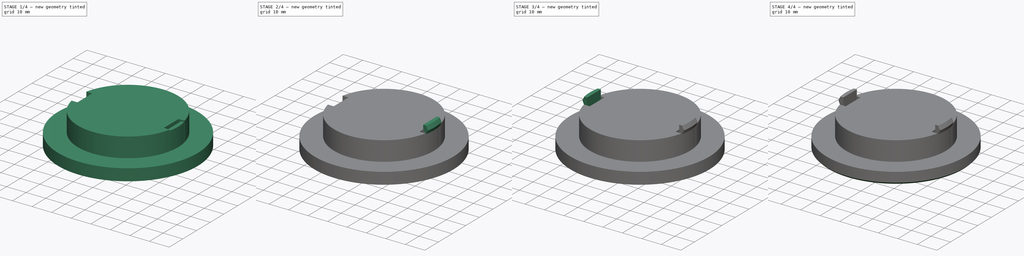
[diagram: build sequence overview — one tinted view per stage of 4, left to right]
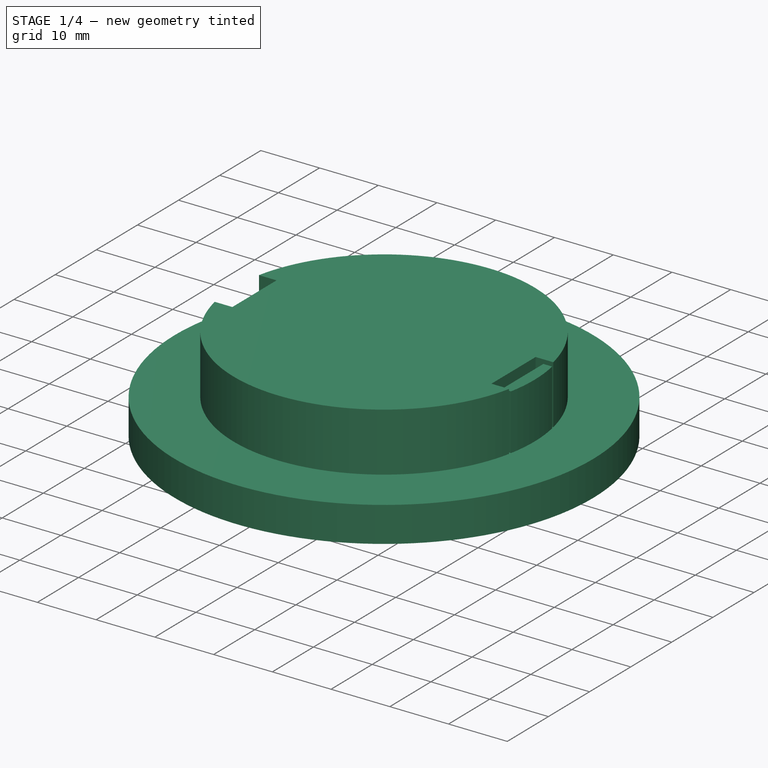
[diagram: stage 1 of 4 — iso view after this stage's code; geometry added in this stage tinted green]
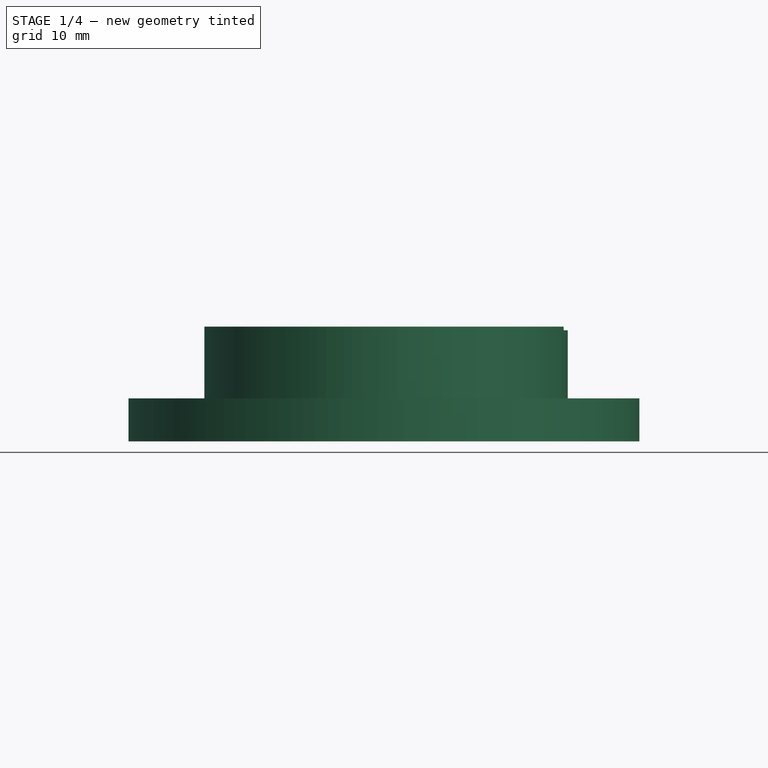
[diagram: stage 1 of 4 — front view after this stage's code; geometry added in this stage tinted green]
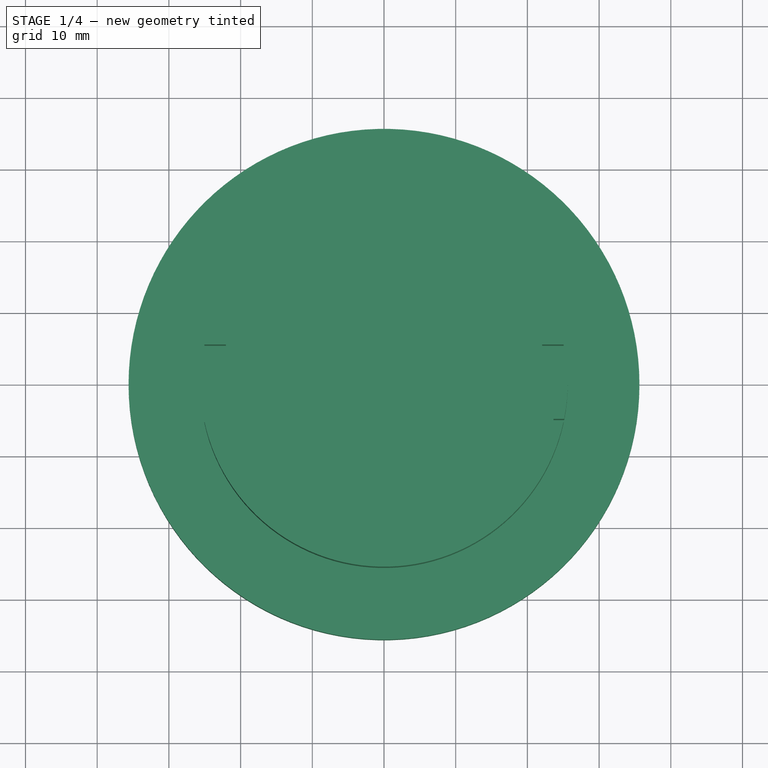
[diagram: stage 1 of 4 — top view after this stage's code; geometry added in this stage tinted green]
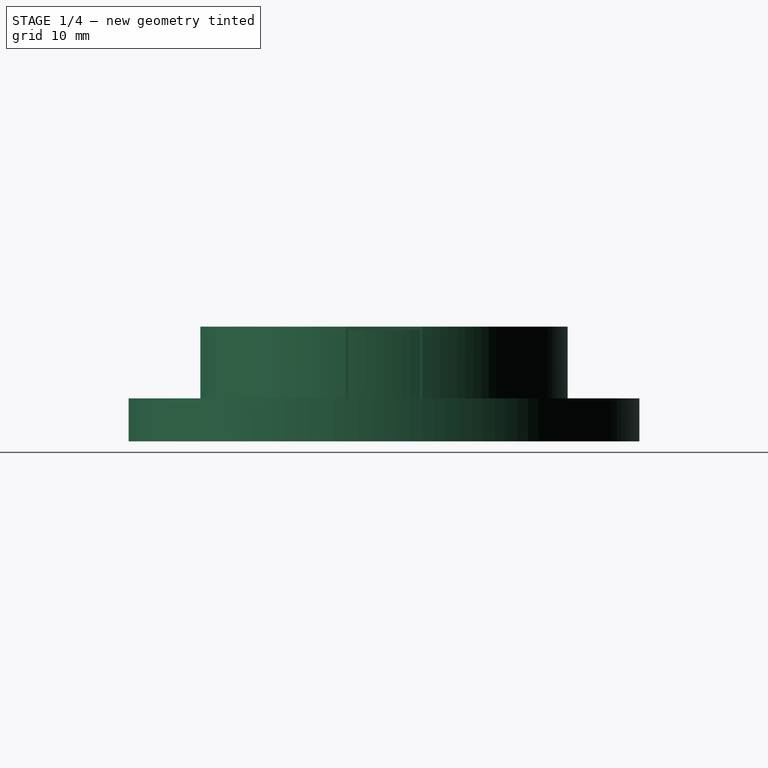
[diagram: stage 1 of 4 — right view after this stage's code; geometry added in this stage tinted green]
FCSTD DOCUMENT  (FreeCAD 0.19R23578 (Git))
Label: preheat hole cover
License: All rights reserved
LicenseURL: http://en.wikipedia.org/wiki/All_rights_reserved
objects: Sketcher::SketchObject×8, PartDesign::Pad×4, PartDesign::Mirrored×2, PartDesign::Chamfer×2, Spreadsheet::Sheet×1, PartDesign::Draft×1, PartDesign::AdditiveLoft×1, PartDesign::Fillet×1, PartDesign::SubtractiveLoft×1, PartDesign::Body×1
note: 31 computed .brp shape members not serialized (recipe doc carries the construction recipe); baked Part::Feature solids carry a one-line shape summary decoded from their .brp

FEATURE [Spreadsheet::Sheet] Spreadsheet  label="dim"
  cells = A2=diameter; B2(diameter)=51.25; A3=thickness; B3(thickness)=10; A4=flange; B4(flange)=10; A5=flange_thickness; B5(flange_thickness)=6; A6=lock_width; B6(lock_width)=10; A7=lock_undercut; B7(lock_undercut)=1.5; A8=lock_thickness; B8(lock_thickness)=1.5; A9=lock_height; B9(lock_height)=9.5; A10=lock_slack; B10(lock_slack)=0.75; A11=lock_extra; B11(lock_extra)=4; A12=lock_draft; B12(lock_draft)=25; A13=grab_width; B13(grab_width)=12.5; A14=grab_height; B14(grab_height)=20; A15=grab_depth; B15(grab_depth)=6; A16=grab_distance; B16(grab_distance)=25; A17=grab_draft; B17(grab_draft)=55; A18=grab_distance_2; B18(grab_distance_2)==grab_distance - 2 * cos(grab_draft) * grab_depth
FEATURE [Sketcher::SketchObject] Sketch
  MapMode = 5
  Support = -> [XY_Plane]
  expr: Constraints[18] = <<dim>>.lock_width + <<dim>>.lock_slack
  expr: Constraints[19] = <<dim>>.diameter
  expr: Constraints[20] = <<dim>>.lock_thickness + <<dim>>.lock_undercut
  sketch-geometry (8):
    g0: ArcOfCircle CenterX=0 CenterY=0 CenterZ=0 NormalX=0 NormalY=0 NormalZ=1 AngleXU=0 Radius=25.625 StartAngle=0.211326 EndAngle=2.93027
    g1: LineSegment StartX=25.0549 StartY=5.375 StartZ=0 EndX=22.0549 EndY=5.375 EndZ=0
    g2: LineSegment StartX=22.0549 StartY=5.375 StartZ=0 EndX=22.0549 EndY=-5.375 EndZ=0
    g3: LineSegment StartX=22.0549 StartY=-5.375 StartZ=0 EndX=25.0549 EndY=-5.375 EndZ=0
    g4: LineSegment StartX=-25.0549 StartY=5.375 StartZ=0 EndX=-22.0549 EndY=5.375 EndZ=0
    g5: LineSegment StartX=-22.0549 StartY=5.375 StartZ=0 EndX=-22.0549 EndY=-5.375 EndZ=0
    g6: LineSegment StartX=-22.0549 StartY=-5.375 StartZ=0 EndX=-25.0549 EndY=-5.375 EndZ=0
    g7: ArcOfCircle CenterX=0 CenterY=0 CenterZ=0 NormalX=0 NormalY=0 NormalZ=1 AngleXU=0 Radius=25.625 StartAngle=3.35292 EndAngle=6.07186
  constraints (23):
    c: Coincident(g0,g-1)
    c: Coincident(g1,g2)
    c: Coincident(g2,g3)
    c: Horizontal(g3)
    c: Coincident(g0,g1)
    c: Coincident(g7,g3)
    c: Horizontal(g4)
    c: Coincident(g4,g5)
    c: Vertical(g5)
    c: Coincident(g5,g6)
    c: Horizontal(g6)
    c: Coincident(g0,g4)
    c: Coincident(g7,g6)
    c: Coincident(g0,g7)
    c: Horizontal(g1)
    c: Horizontal(g1,g4)
    c: Equal(g1,g4)
    c: Symmetric(g1,g2,g-1)
    c: DistanceY(g2,g2) = 10.75
    c: Diameter(g0) = 51.25
    c: DistanceX(g1,g1) = 3
    c: Equal(g0,g7)
    c: Horizontal(g5,g2)
FEATURE [PartDesign::Pad] Pad
  Direction = (1,1,1)
  Length = 10
  Length2 = 100
  Profile = -> Sketch
  Refine = true
  Type = 0
  expr: Length = <<dim>>.thickness
FEATURE [Sketcher::SketchObject] Sketch001
  MapMode = 5
  Support = -> [XY_Plane]
  expr: Constraints[1] = <<dim>>.diameter + 2 * <<dim>>.flange
  sketch-geometry (1):
    g0: Circle CenterX=0 CenterY=0 CenterZ=0 NormalX=0 NormalY=0 NormalZ=1 AngleXU=0 Radius=35.625
  constraints (2):
    c: Coincident(g0,g-1)
    c: Diameter(g0) = 71.25
FEATURE [PartDesign::Pad] Pad001
  BaseFeature = -> Pad
  Direction = (1,1,1)
  Length = 6
  Length2 = 100
  Profile = -> Sketch001
  Refine = true
  Reversed = true
  Type = 0
  expr: Length = <<dim>>.flange_thickness
FEATURE [Sketcher::SketchObject] Sketch002
  ExternalGeometry = -> [Pad001]
  MapMode = 5
  Support = -> [XY_Plane]
  expr: Constraints[10] = <<dim>>.lock_thickness
  expr: Constraints[11] = <<dim>>.lock_width
  sketch-geometry (4):
    g0: ArcOfCircle CenterX=0 CenterY=0 CenterZ=0 NormalX=0 NormalY=0 NormalZ=1 AngleXU=0 Radius=25.625 StartAngle=6.0868 EndAngle=6.47957
    g1: LineSegment StartX=25.1325 StartY=5 StartZ=0 EndX=23.6325 EndY=5 EndZ=0
    g2: LineSegment StartX=25.1325 StartY=-5 StartZ=0 EndX=23.6325 EndY=-5 EndZ=0
    g3: LineSegment StartX=23.6325 StartY=-5 StartZ=0 EndX=23.6325 EndY=5 EndZ=0
  constraints (12):
    c: Coincident(g0,g-1)
    c: Equal(g-3,g0)
    c: Symmetric(g0,g0,g-1)
    c: Coincident(g1,g0)
    c: Horizontal(g1)
    c: Coincident(g2,g0)
    c: Horizontal(g2)
    c: Coincident(g3,g2)
    c: Coincident(g3,g1)
    c: Vertical(g3)
    c: DistanceX(g1,g1) = 1.5
    c: DistanceY(g3,g3) = 10
FEATURE [PartDesign::Pad] Pad002
  BaseFeature = -> Pad001
  Direction = (1,1,1)
  Length = 9.5
  Length2 = 100
  Profile = -> Sketch002
  Refine = true
  Type = 0
  expr: Length = <<dim>>.lock_height
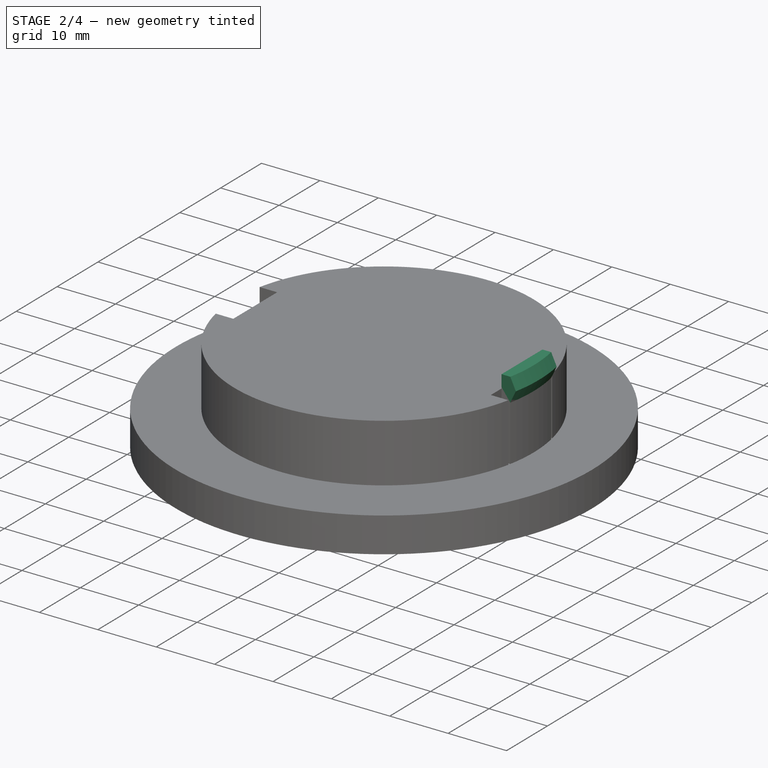
[diagram: stage 2 of 4 — iso view after this stage's code; geometry added in this stage tinted green]
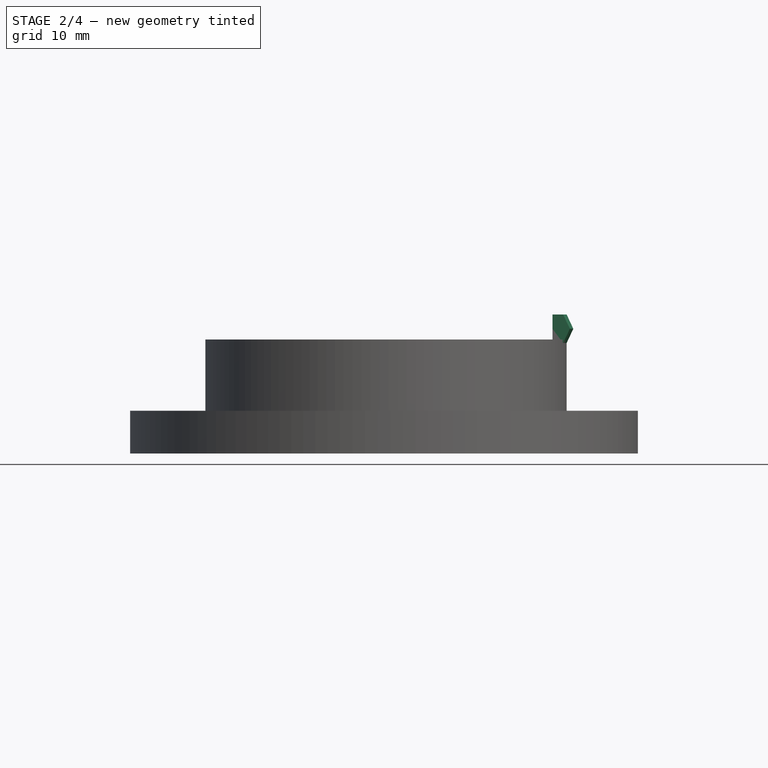
[diagram: stage 2 of 4 — front view after this stage's code; geometry added in this stage tinted green]
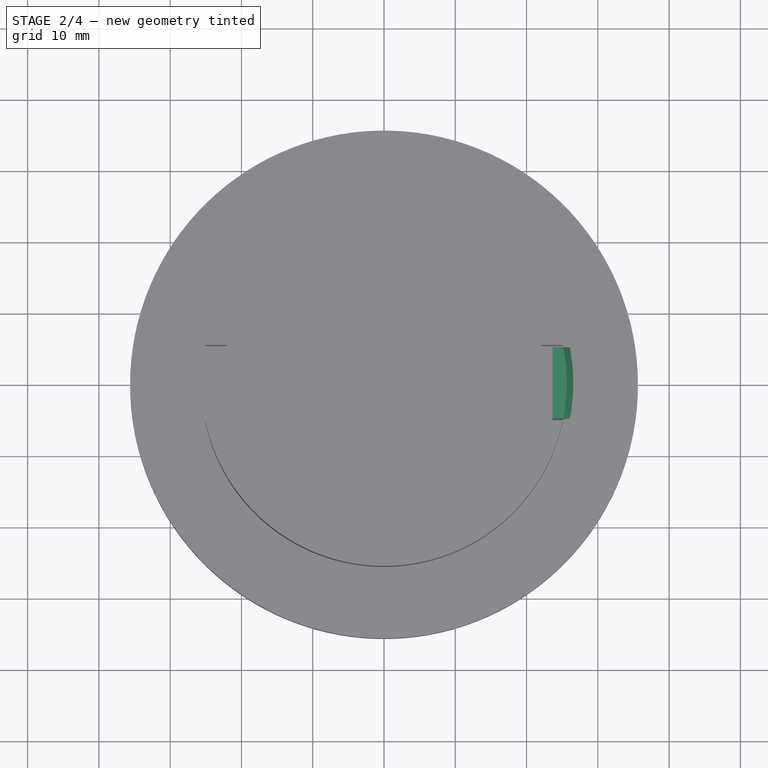
[diagram: stage 2 of 4 — top view after this stage's code; geometry added in this stage tinted green]
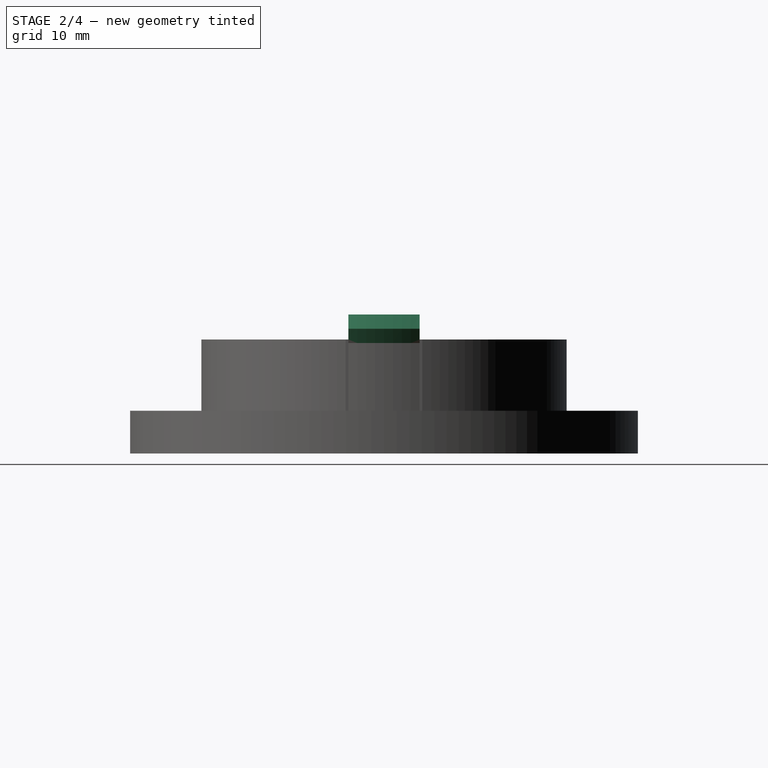
[diagram: stage 2 of 4 — right view after this stage's code; geometry added in this stage tinted green]
FEATURE [Sketcher::SketchObject] Sketch003
  AttachmentOffset = pos=(0,0,9.5) rot=(0,0,1;0rad)
  ExternalGeometry = -> [Pad002]
  MapMode = 5
  Placement = pos=(0,0,9.5) rot=(0,0,1;0rad)
  Support = -> [XY_Plane]
  expr: .AttachmentOffset.Base.z = <<dim>>.lock_height
  sketch-geometry (4):
    g0: LineSegment StartX=25.1325 StartY=5 StartZ=0 EndX=23.6325 EndY=5 EndZ=0
    g1: LineSegment StartX=23.6325 StartY=5 StartZ=0 EndX=23.6325 EndY=-5 EndZ=0
    g2: LineSegment StartX=23.6325 StartY=-5 StartZ=0 EndX=25.1325 EndY=-5 EndZ=0
    g3: ArcOfCircle CenterX=0 CenterY=0 CenterZ=0 NormalX=0 NormalY=0 NormalZ=1 AngleXU=0 Radius=25.625 StartAngle=6.0868 EndAngle=6.47957
  constraints (9):
    c: Coincident(g0,g-4)
    c: Coincident(g0,g-3)
    c: Coincident(g1,g0)
    c: Coincident(g1,g-3)
    c: Coincident(g2,g1)
    c: Coincident(g2,g-4)
    c: Coincident(g3,g-1)
    c: Coincident(g3,g0)
    c: Coincident(g3,g2)
FEATURE [Sketcher::SketchObject] Sketch004
  AttachmentOffset = pos=(0,0,6) rot=(0,0,1;1.5708rad)
  MapMode = 5
  Placement = pos=(0,0,-6) rot=(0.707107,0.707107,0;3.14159rad)
  Support = -> [XY_Plane]
  expr: Constraints[5] = <<dim>>.grab_width
  expr: Constraints[6] = <<dim>>.grab_height
  expr: Constraints[7] = <<dim>>.grab_distance / 2
  expr: .AttachmentOffset.Base.z = <<dim>>.flange_thickness
  sketch-geometry (4):
    g0: LineSegment StartX=12.5 StartY=10 StartZ=0 EndX=25 EndY=10 EndZ=0
    g1: LineSegment StartX=25 StartY=-10 StartZ=0 EndX=12.5 EndY=-10 EndZ=0
    g2: LineSegment StartX=12.5 StartY=-10 StartZ=0 EndX=12.5 EndY=10 EndZ=0
    g3: ArcOfCircle CenterX=0 CenterY=0 CenterZ=0 NormalX=0 NormalY=0 NormalZ=1 AngleXU=0 Radius=26.9258 StartAngle=5.90268 EndAngle=6.66369
  constraints (11):
    c: Coincident(g1,g2)
    c: Coincident(g2,g0)
    c: Horizontal(g0)
    c: Horizontal(g1)
    c: Symmetric(g0,g1,g-1)
    c: DistanceX(g1,g1) = 12.5
    c: DistanceY(g1,g0) = 20
    c: DistanceX(g1) = 12.5
    c: Coincident(g3,g-1)
    c: Coincident(g3,g0)
    c: Coincident(g3,g1)
FEATURE [Sketcher::SketchObject] Sketch005
  AttachmentOffset = pos=(0,0,0) rot=(0,0,1;1.5708rad)
  MapMode = 5
  Placement = pos=(0,0,0) rot=(0.707107,0.707107,0;3.14159rad)
  Support = -> [XY_Plane]
  expr: Constraints[5] = <<dim>>.grab_distance_2 / 2
  expr: Constraints[6] = <<dim>>.grab_width
  expr: Constraints[7] = <<dim>>.grab_height
  expr: .AttachmentOffset.Base.z = <<dim>>.flange_thickness - <<dim>>.grab_depth
  sketch-geometry (4):
    g0: LineSegment StartX=9.05854 StartY=10 StartZ=0 EndX=21.5585 EndY=10 EndZ=0
    g1: LineSegment StartX=21.5585 StartY=-10 StartZ=0 EndX=9.05854 EndY=-10 EndZ=0
    g2: LineSegment StartX=9.05854 StartY=-10 StartZ=0 EndX=9.05854 EndY=10 EndZ=0
    g3: ArcOfCircle CenterX=0 CenterY=0 CenterZ=0 NormalX=0 NormalY=0 NormalZ=1 AngleXU=0 Radius=23.7649 StartAngle=5.84887 EndAngle=6.7175
  constraints (11):
    c: Coincident(g1,g2)
    c: Coincident(g2,g0)
    c: Horizontal(g0)
    c: Horizontal(g1)
    c: Symmetric(g0,g1,g-1)
    c: DistanceX(g1) = 9.05854
    c: DistanceX(g0,g0) = 12.5
    c: DistanceY(g1,g0) = 20
    c: Coincident(g3,g-1)
    c: Coincident(g3,g0)
    c: Coincident(g3,g1)
FEATURE [PartDesign::Pad] Pad003
  BaseFeature = -> Pad002
  Direction = (1,1,1)
  Length = 2
  Length2 = 100
  Profile = -> Sketch003
  Type = 0
  expr: Length = <<dim>>.lock_extra / 2
FEATURE [PartDesign::Draft] Draft
  Angle = 25
  Base = -> Pad003 [Face17]
  BaseFeature = -> Pad003
  Refine = true
  SupportTransform = false
  expr: Angle = <<dim>>.lock_draft
FEATURE [Sketcher::SketchObject] Sketch006
  AttachmentOffset = pos=(0,0,11.5) rot=(0,0,1;0rad)
  ExternalGeometry = -> [Draft]
  MapMode = 5
  Placement = pos=(0,0,11.5) rot=(0,0,1;0rad)
  Support = -> [XY_Plane]
  expr: .AttachmentOffset.Base.z = <<dim>>.lock_height + <<dim>>.lock_extra / 2
  sketch-geometry (4):
    g0: ArcOfCircle CenterX=0 CenterY=0 CenterZ=0 NormalX=0 NormalY=0 NormalZ=1 AngleXU=0 Radius=26.5576 StartAngle=6.09379 EndAngle=6.47259
    g1: LineSegment StartX=26.0827 StartY=5 StartZ=0 EndX=23.6325 EndY=5 EndZ=0
    g2: LineSegment StartX=23.6325 StartY=5 StartZ=0 EndX=23.6325 EndY=-5 EndZ=0
    g3: LineSegment StartX=23.6325 StartY=-5 StartZ=0 EndX=26.0827 EndY=-5 EndZ=0
  constraints (9):
    c: Coincident(g0,g-1)
    c: Coincident(g0,g-4)
    c: Coincident(g0,g-4)
    c: Coincident(g1,g0)
    c: Coincident(g1,g-5)
    c: Coincident(g2,g1)
    c: Coincident(g2,g-5)
    c: Coincident(g3,g2)
    c: Coincident(g3,g0)
FEATURE [Sketcher::SketchObject] Sketch007
  AttachmentOffset = pos=(0,0,13.5) rot=(0,0,1;0rad)
  ExternalGeometry = -> [Sketch002]
  MapMode = 5
  Placement = pos=(0,0,13.5) rot=(0,0,1;0rad)
  Support = -> [XY_Plane]
  expr: .AttachmentOffset.Base.z = <<dim>>.lock_height + <<dim>>.lock_extra
  sketch-geometry (4):
    g0: ArcOfCircle CenterX=0 CenterY=0 CenterZ=0 NormalX=0 NormalY=0 NormalZ=1 AngleXU=0 Radius=25.625 StartAngle=6.0868 EndAngle=6.47957
    g1: LineSegment StartX=25.1325 StartY=5 StartZ=0 EndX=23.6325 EndY=5 EndZ=0
    g2: LineSegment StartX=23.6325 StartY=5 StartZ=0 EndX=23.6325 EndY=-5 EndZ=0
    g3: LineSegment StartX=23.6325 StartY=-5 StartZ=0 EndX=25.1325 EndY=-5 EndZ=0
  constraints (9):
    c: Coincident(g0,g-1)
    c: Coincident(g0,g-3)
    c: Coincident(g0,g-3)
    c: Coincident(g1,g0)
    c: Coincident(g1,g-4)
    c: Coincident(g2,g1)
    c: Coincident(g2,g-4)
    c: Coincident(g3,g2)
    c: Coincident(g3,g0)
FEATURE [PartDesign::AdditiveLoft] AdditiveLoft
  BaseFeature = -> Draft
  Closed = false
  Profile = -> Sketch006
  Refine = true
  Ruled = false
  Sections = -> [Sketch007]
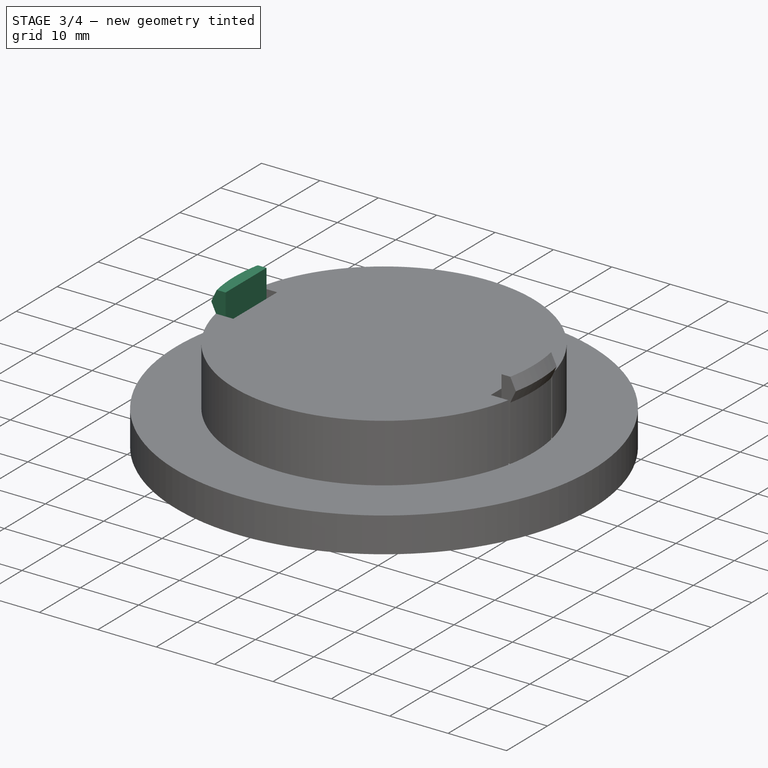
[diagram: stage 3 of 4 — iso view after this stage's code; geometry added in this stage tinted green]
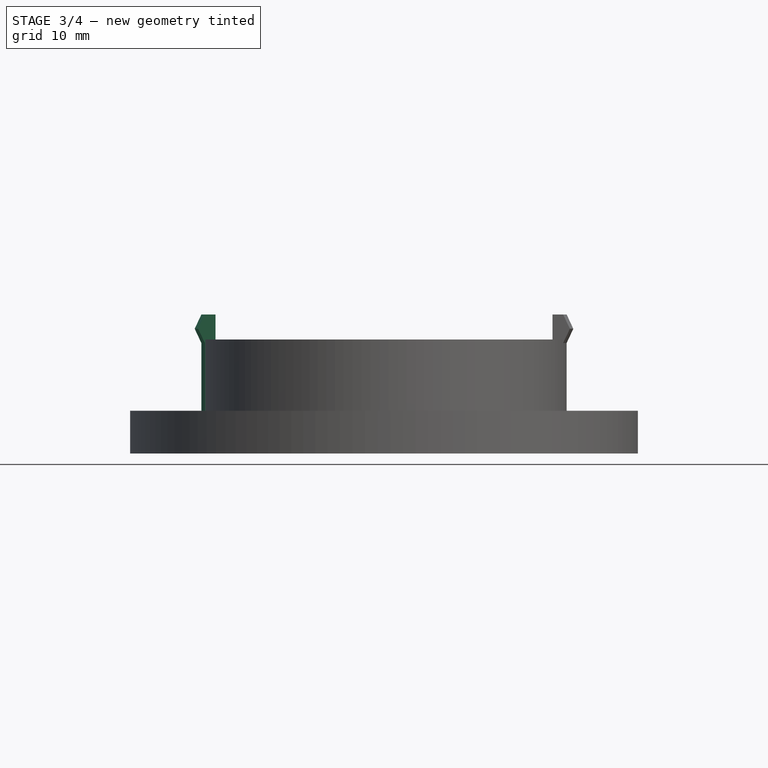
[diagram: stage 3 of 4 — front view after this stage's code; geometry added in this stage tinted green]
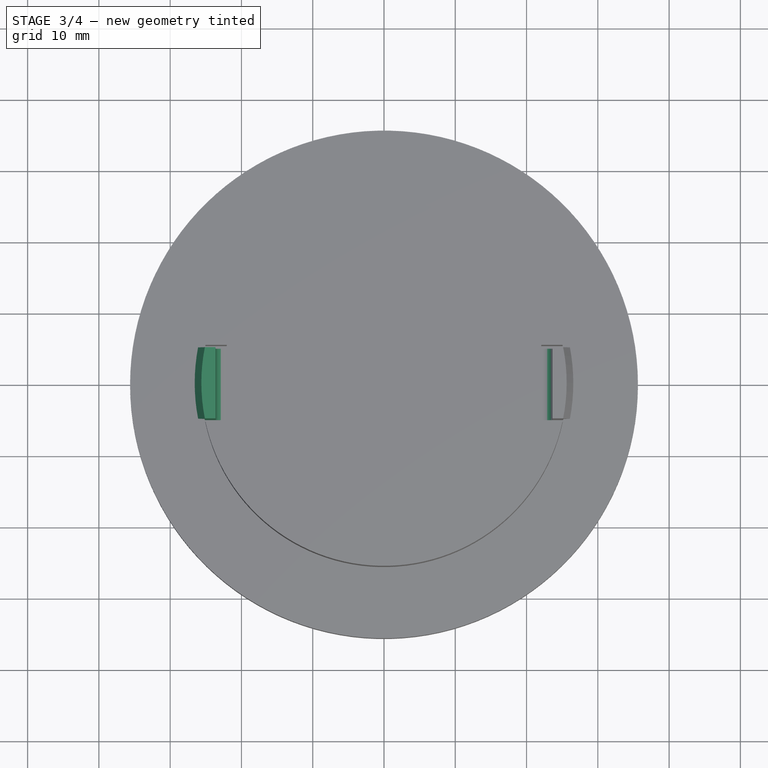
[diagram: stage 3 of 4 — top view after this stage's code; geometry added in this stage tinted green]
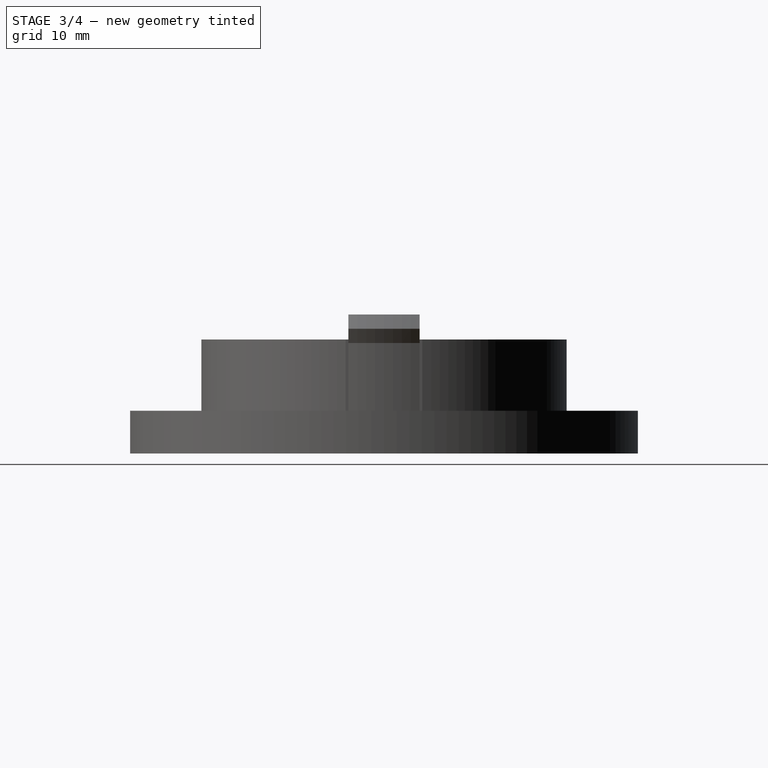
[diagram: stage 3 of 4 — right view after this stage's code; geometry added in this stage tinted green]
FEATURE [PartDesign::Fillet] Fillet
  Base = -> AdditiveLoft [Edge14]
  BaseFeature = -> AdditiveLoft
  Radius = 1.5
  Refine = true
  SupportTransform = false
FEATURE [PartDesign::Mirrored] Mirrored
  BaseFeature = -> Fillet
  MirrorPlane = -> Sketch002 [V_Axis]
  Originals = -> [Pad002,Pad003,Draft,AdditiveLoft,Fillet]
  Refine = true
FEATURE [PartDesign::SubtractiveLoft] SubtractiveLoft
  BaseFeature = -> Mirrored
  Closed = false
  Profile = -> Sketch004
  Refine = true
  Ruled = false
  Sections = -> [Sketch005]
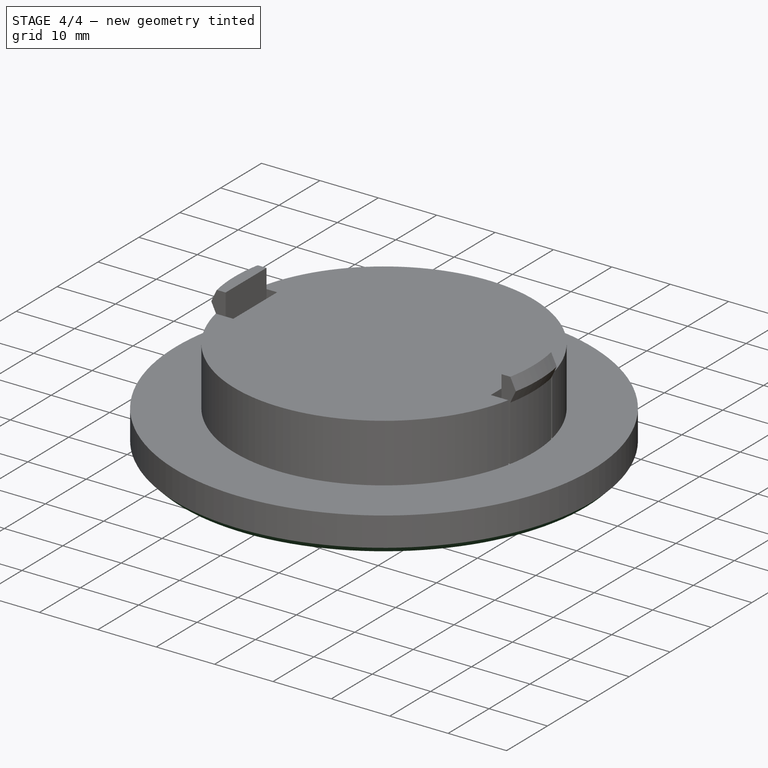
[diagram: stage 4 of 4 — iso view after this stage's code; geometry added in this stage tinted green]
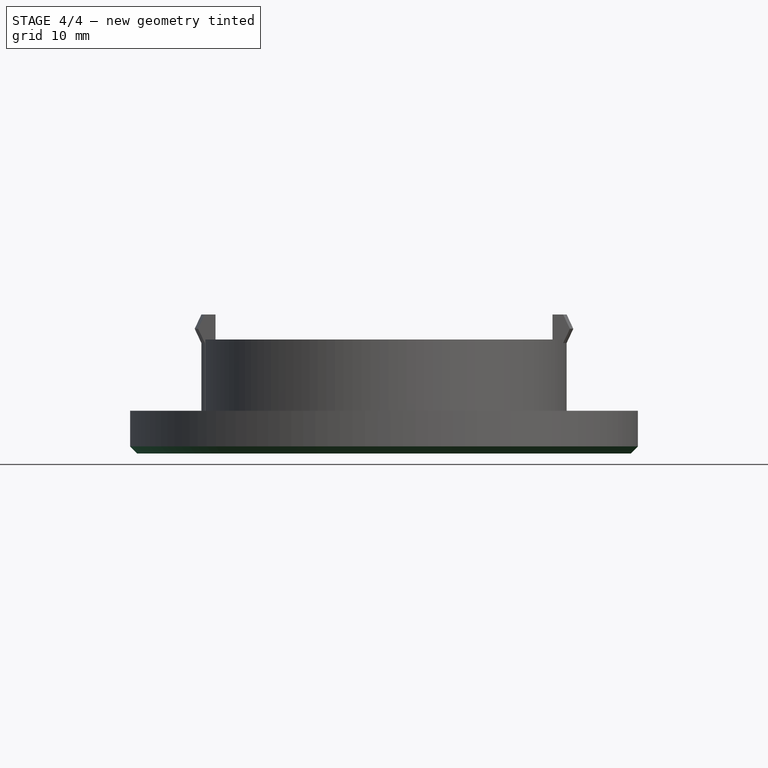
[diagram: stage 4 of 4 — front view after this stage's code; geometry added in this stage tinted green]
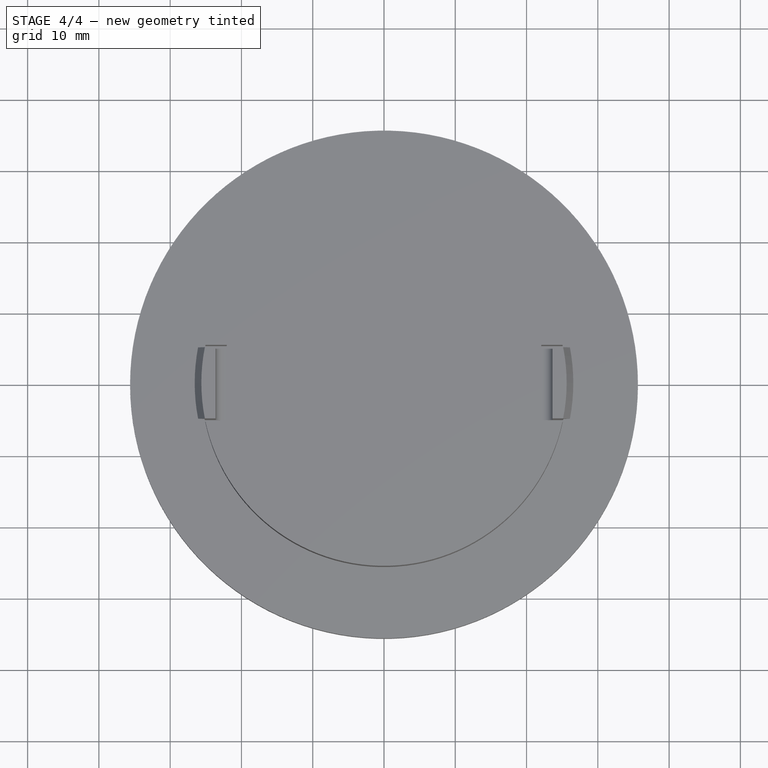
[diagram: stage 4 of 4 — top view after this stage's code; geometry added in this stage tinted green]
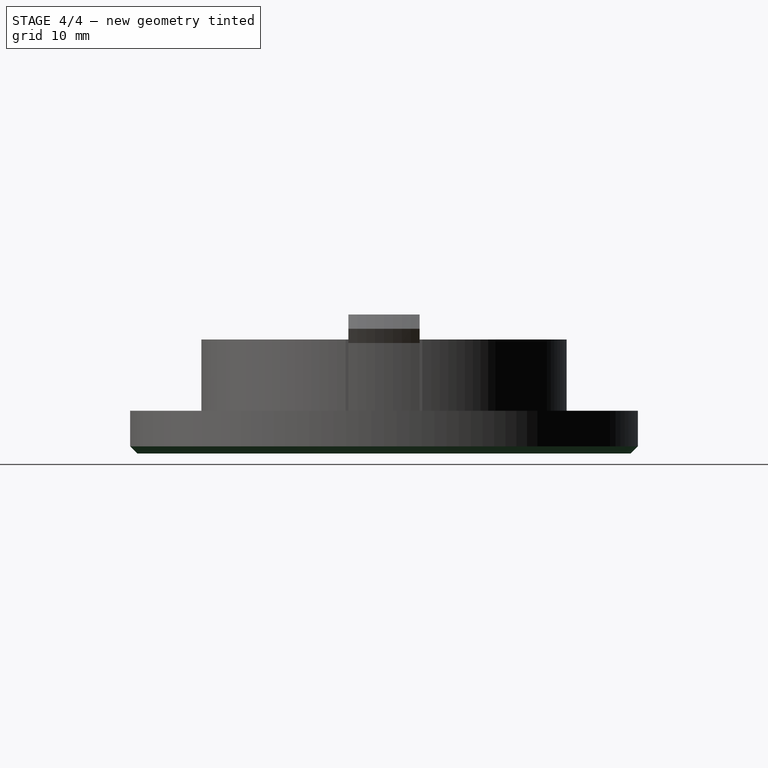
[diagram: stage 4 of 4 — right view after this stage's code; geometry added in this stage tinted green]
FEATURE [PartDesign::Chamfer] Chamfer
  Angle = 45
  Base = -> SubtractiveLoft [Edge66,Edge65,Edge64]
  BaseFeature = -> SubtractiveLoft
  ChamferType = 0
  FlipDirection = false
  Refine = true
  Size = 1
  Size2 = 1
  SupportTransform = false
FEATURE [PartDesign::Mirrored] Mirrored001
  BaseFeature = -> Chamfer
  MirrorPlane = -> Sketch004 [V_Axis]
  Originals = -> [SubtractiveLoft,Chamfer]
  Refine = true
FEATURE [PartDesign::Chamfer] Chamfer001
  Angle = 45
  Base = -> Mirrored001 [Edge1]
  BaseFeature = -> Mirrored001
  ChamferType = 0
  FlipDirection = false
  Refine = true
  Size = 1
  Size2 = 1
  SupportTransform = false
FEATURE [PartDesign::Body] Body
  Group = -> [Sketch,Pad,Sketch001,Pad001,Sketch002,Pad002,Sketch003,Sketch004,Sketch005,Pad003,Draft,Sketch006,Sketch007,AdditiveLoft,Fillet,Mirrored,SubtractiveLoft,Chamfer,Mirrored001,Chamfer001]
  Origin = -> Origin
  Tip = -> Chamfer001
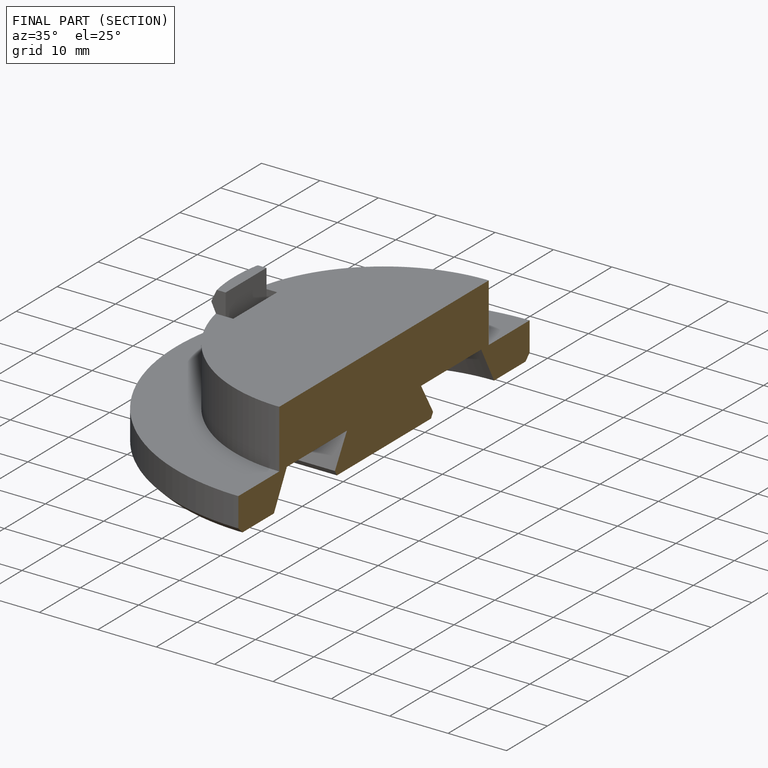
[diagram: finished part — half-section view (interior)]
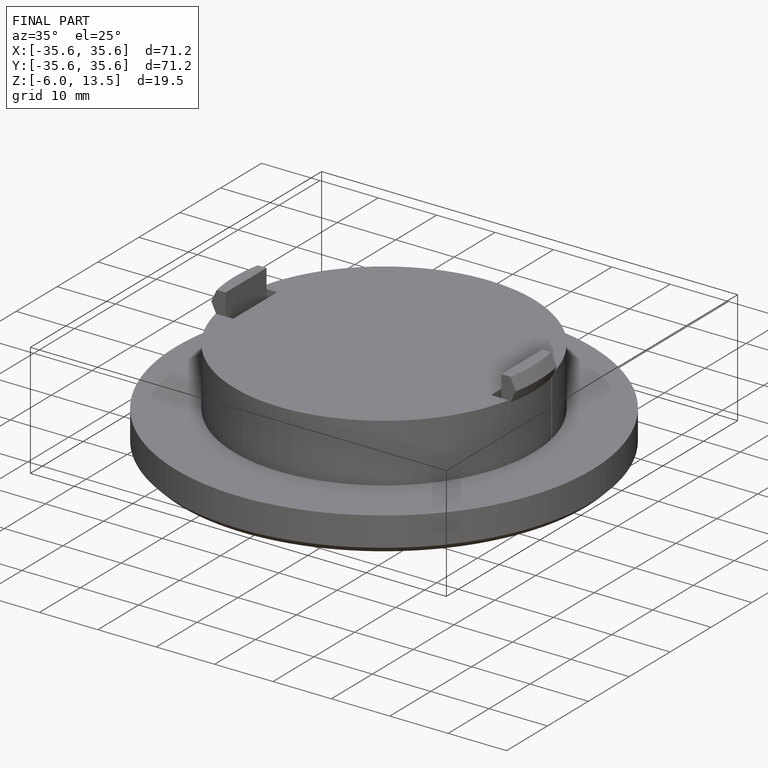
[diagram: finished part — iso view with bounding-box wireframe]
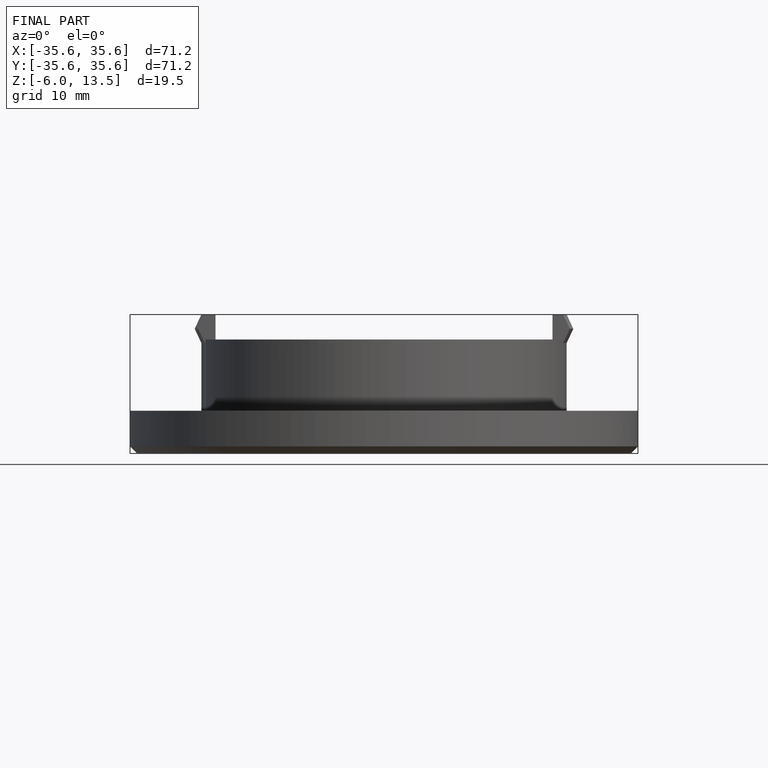
[diagram: finished part — front view with bounding-box wireframe]
